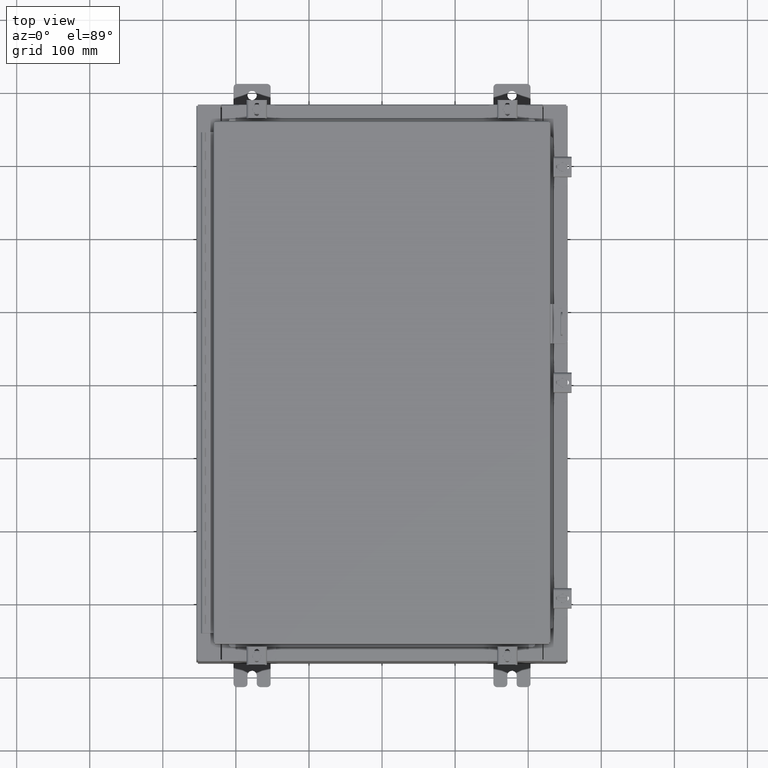
[diagram: clean part render]
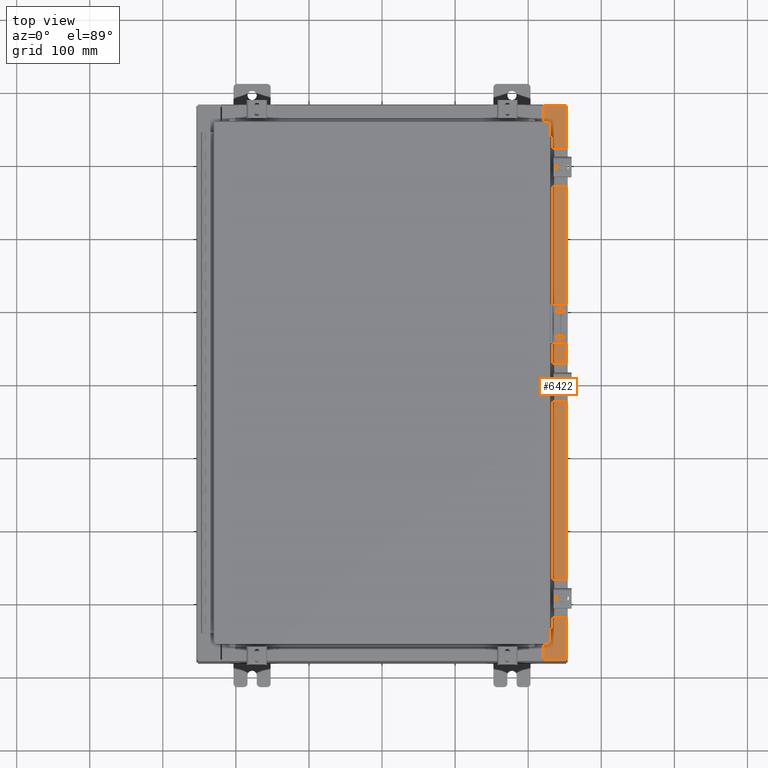
[diagram: same view with one face highlighted and labeled with its STEP entity id]
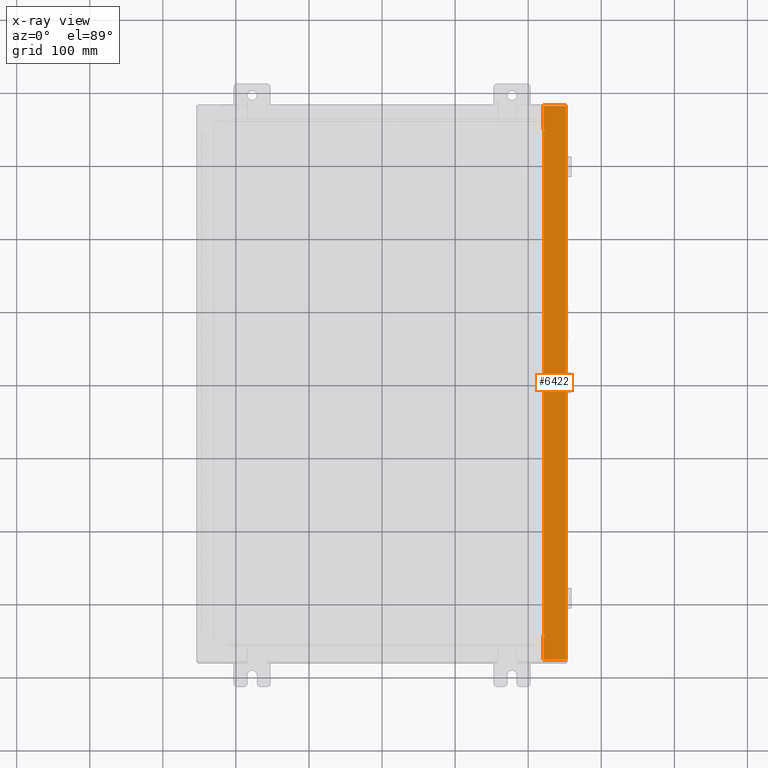
[diagram: x-ray of the same camera — body ghosted, the highlighted face saturated]
A machine part, top view. The second image highlights one B-rep face of the part: STEP entity #6422.
The next image is the same camera in x-ray: the body ghosted, the highlighted face saturated — about 0% of this face is hidden behind the body in this view.
In plain terms, the highlighted planar face has unit normal (-0, -0, -1).
Its self-contained STEP definition (entity closure, byte-faithful):
#106 = VERTEX_POINT ( 'NONE', #13331 ) ;
#571 = EDGE_CURVE ( 'NONE', #21090, #17673, #15659, .T. ) ;
#758 = ORIENTED_EDGE ( 'NONE', *, *, #33576, .T. ) ;
#1273 = VERTEX_POINT ( 'NONE', #2179 ) ;
#2179 = CARTESIAN_POINT ( 'NONE',  ( 8.699700000000028400, 13.63110000000000700, 7.925300000000008900 ) ) ;
#2803 = EDGE_CURVE ( 'NONE', #7888, #21090, #7504, .T. ) ;
#3028 = AXIS2_PLACEMENT_3D ( 'NONE', #13422, #13379, #13375 ) ;
#3109 = CARTESIAN_POINT ( 'NONE',  ( 9.912300000000028500, 14.92530000000000700, 7.925300000000000000 ) ) ;
#3203 = VERTEX_POINT ( 'NONE', #22450 ) ;
#3228 = CARTESIAN_POINT ( 'NONE',  ( 8.750050000000030100, 13.63110000000000700, 7.925300000000008900 ) ) ;
#3978 = VECTOR ( 'NONE', #17254, 39.37007874015748100 ) ;
#4178 = EDGE_CURVE ( 'NONE', #34223, #3203, #29104, .T. ) ;
#6068 = VECTOR ( 'NONE', #22429, 39.37007874015748100 ) ;
#6401 = ORIENTED_EDGE ( 'NONE', *, *, #4178, .F. ) ;
#6422 = ADVANCED_FACE ( 'NONE', ( #28535 ), #35598, .F. ) ;
#6718 = EDGE_CURVE ( 'NONE', #9891, #106, #11703, .T. ) ;
#6786 = ORIENTED_EDGE ( 'NONE', *, *, #16238, .T. ) ;
#6936 = DIRECTION ( 'NONE',  ( -1.000000000000000000, 4.379057701015054300E-047, 7.132762385546378400E-015 ) ) ;
#7319 = CARTESIAN_POINT ( 'NONE',  ( 5.679009539018278900E-014, 14.92530000000000500, 7.925300000000069300 ) ) ;
#7504 = CIRCLE ( 'NONE', #13923, 0.01867499999999949400 ) ;
#7888 = VERTEX_POINT ( 'NONE', #17109 ) ;
#7948 = DIRECTION ( 'NONE',  ( -1.000000000000000000, 0.0000000000000000000, 7.132762385546378400E-015 ) ) ;
#8043 = DIRECTION ( 'NONE',  ( -1.000000000000000000, 0.0000000000000000000, 0.0000000000000000000 ) ) ;
#8542 = CARTESIAN_POINT ( 'NONE',  ( 8.699700000000028400, -13.63109999999999800, 7.925300000000008900 ) ) ;
#8832 = CARTESIAN_POINT ( 'NONE',  ( 8.750050000000030100, -13.59375000000000000, 7.925300000000008900 ) ) ;
#9026 = CARTESIAN_POINT ( 'NONE',  ( 8.699700000000028400, -13.63109999999999800, 7.925300000000008900 ) ) ;
#9079 = DIRECTION ( 'NONE',  ( 1.000000000000000000, 0.0000000000000000000, 0.0000000000000000000 ) ) ;
#9725 = DIRECTION ( 'NONE',  ( 1.000000000000000000, 0.0000000000000000000, 0.0000000000000000000 ) ) ;
#9891 = VERTEX_POINT ( 'NONE', #28573 ) ;
#10834 = CARTESIAN_POINT ( 'NONE',  ( 8.699700000000028400, 14.92530000000000700, 7.925300000000007100 ) ) ;
#11238 = CARTESIAN_POINT ( 'NONE',  ( 8.750050000000030100, -13.59375000000000000, 7.925300000000008900 ) ) ;
#11703 = LINE ( 'NONE', #16449, #18528 ) ;
#12250 = VECTOR ( 'NONE', #17214, 39.37007874015748100 ) ;
#12388 = AXIS2_PLACEMENT_3D ( 'NONE', #30857, #30012, #7948 ) ;
#12547 = CARTESIAN_POINT ( 'NONE',  ( 8.712700000000030100, -13.59375000000000000, 7.925300000000008900 ) ) ;
#12834 = DIRECTION ( 'NONE',  ( -0.0000000000000000000, 1.000000000000000000, -0.0000000000000000000 ) ) ;
#12887 = ORIENTED_EDGE ( 'NONE', *, *, #13429, .F. ) ;
#13331 = CARTESIAN_POINT ( 'NONE',  ( 8.750050000000030100, 13.59375000000000900, 7.925300000000007100 ) ) ;
#13375 = DIRECTION ( 'NONE',  ( 1.000000000000000000, 0.0000000000000000000, 0.0000000000000000000 ) ) ;
#13379 = DIRECTION ( 'NONE',  ( 7.132762385546378400E-015, 3.660694248911932200E-017, 1.000000000000000000 ) ) ;
#13420 = CARTESIAN_POINT ( 'NONE',  ( 8.750050000000030100, 13.63110000000000700, 7.925300000000008900 ) ) ;
#13422 = CARTESIAN_POINT ( 'NONE',  ( 8.750050000000030100, 13.61242500000000900, 7.925300000000008900 ) ) ;
#13429 = EDGE_CURVE ( 'NONE', #13461, #7888, #29241, .T. ) ;
#13461 = VERTEX_POINT ( 'NONE', #8542 ) ;
#13633 = DIRECTION ( 'NONE',  ( -1.000000000000000000, 0.0000000000000000000, 0.0000000000000000000 ) ) ;
#13680 = VECTOR ( 'NONE', #13633, 39.37007874015748100 ) ;
#13923 = AXIS2_PLACEMENT_3D ( 'NONE', #34784, #34739, #34732 ) ;
#13933 = CARTESIAN_POINT ( 'NONE',  ( 8.699700000000028400, 2.901210013090176800E-016, 7.925300000000008900 ) ) ;
#13981 = VECTOR ( 'NONE', #6936, 39.37007874015748100 ) ;
#14431 = ORIENTED_EDGE ( 'NONE', *, *, #571, .F. ) ;
#14590 = LINE ( 'NONE', #13420, #13680 ) ;
#15285 = CARTESIAN_POINT ( 'NONE',  ( 8.699700000000028400, 2.901210013090176800E-016, 7.925300000000008900 ) ) ;
#15659 = LINE ( 'NONE', #11238, #37079 ) ;
#15675 = DIRECTION ( 'NONE',  ( 0.0000000000000000000, -1.000000000000000000, 3.660694248911932200E-017 ) ) ;
#15936 = EDGE_LOOP ( 'NONE', ( #12887, #26108, #31949, #6401, #6786, #758, #22191, #34217, #16967, #32740, #14431, #34368 ) ) ;
#16238 = EDGE_CURVE ( 'NONE', #34223, #20321, #21718, .T. ) ;
#16449 = CARTESIAN_POINT ( 'NONE',  ( 8.712700000000030100, 13.59375000000000900, 7.925300000000008900 ) ) ;
#16837 = CARTESIAN_POINT ( 'NONE',  ( 8.340474999843167500E-014, -14.92530000000001400, 7.925300000000071100 ) ) ;
#16966 = LINE ( 'NONE', #12547, #31580 ) ;
#16967 = ORIENTED_EDGE ( 'NONE', *, *, #6718, .F. ) ;
#17109 = CARTESIAN_POINT ( 'NONE',  ( 8.750050000000030100, -13.63109999999999800, 7.925300000000008900 ) ) ;
#17214 = DIRECTION ( 'NONE',  ( 0.0000000000000000000, -1.000000000000000000, 3.660694248911932200E-017 ) ) ;
#17254 = DIRECTION ( 'NONE',  ( 1.000000000000000000, 1.783190596386594600E-015, -7.132762385546378400E-015 ) ) ;
#17673 = VERTEX_POINT ( 'NONE', #31233 ) ;
#18509 = EDGE_CURVE ( 'NONE', #25249, #3203, #25191, .T. ) ;
#18528 = VECTOR ( 'NONE', #9079, 39.37007874015748100 ) ;
#20151 = LINE ( 'NONE', #15285, #37500 ) ;
#20321 = VERTEX_POINT ( 'NONE', #10834 ) ;
#21090 = VERTEX_POINT ( 'NONE', #8832 ) ;
#21718 = LINE ( 'NONE', #7319, #13981 ) ;
#22191 = ORIENTED_EDGE ( 'NONE', *, *, #25618, .F. ) ;
#22429 = DIRECTION ( 'NONE',  ( -0.0000000000000000000, -1.000000000000000000, 3.660694248911932200E-017 ) ) ;
#22450 = CARTESIAN_POINT ( 'NONE',  ( 9.912300000000028500, -14.92529999999999800, 7.925300000000000900 ) ) ;
#22863 = CARTESIAN_POINT ( 'NONE',  ( 9.912300000000028500, -14.92529999999999800, 7.925300000000000900 ) ) ;
#23872 = EDGE_CURVE ( 'NONE', #17673, #9891, #16966, .T. ) ;
#24986 = CARTESIAN_POINT ( 'NONE',  ( 8.699700000000028400, -14.92529999999999800, 7.925300000000008900 ) ) ;
#25151 = CIRCLE ( 'NONE', #3028, 0.01867499999999949400 ) ;
#25191 = LINE ( 'NONE', #16837, #3978 ) ;
#25249 = VERTEX_POINT ( 'NONE', #24986 ) ;
#25618 = EDGE_CURVE ( 'NONE', #37107, #1273, #14590, .T. ) ;
#26108 = ORIENTED_EDGE ( 'NONE', *, *, #29962, .T. ) ;
#28347 = VECTOR ( 'NONE', #9725, 39.37007874015748100 ) ;
#28535 = FACE_OUTER_BOUND ( 'NONE', #15936, .T. ) ;
#28573 = CARTESIAN_POINT ( 'NONE',  ( 8.712700000000030100, 13.59375000000000900, 7.925300000000008900 ) ) ;
#28603 = LINE ( 'NONE', #13933, #12250 ) ;
#29104 = LINE ( 'NONE', #22863, #6068 ) ;
#29241 = LINE ( 'NONE', #9026, #28347 ) ;
#29962 = EDGE_CURVE ( 'NONE', #13461, #25249, #28603, .T. ) ;
#30012 = DIRECTION ( 'NONE',  ( -7.132762385546378400E-015, -3.660694248911932200E-017, -1.000000000000000000 ) ) ;
#30857 = CARTESIAN_POINT ( 'NONE',  ( 5.679009539018279500E-014, 2.901210013090199500E-016, 7.925300000000071100 ) ) ;
#31233 = CARTESIAN_POINT ( 'NONE',  ( 8.712700000000030100, -13.59375000000000000, 7.925300000000008900 ) ) ;
#31580 = VECTOR ( 'NONE', #12834, 39.37007874015748100 ) ;
#31949 = ORIENTED_EDGE ( 'NONE', *, *, #18509, .T. ) ;
#32740 = ORIENTED_EDGE ( 'NONE', *, *, #23872, .F. ) ;
#33576 = EDGE_CURVE ( 'NONE', #20321, #1273, #20151, .T. ) ;
#33682 = EDGE_CURVE ( 'NONE', #106, #37107, #25151, .T. ) ;
#34217 = ORIENTED_EDGE ( 'NONE', *, *, #33682, .F. ) ;
#34223 = VERTEX_POINT ( 'NONE', #3109 ) ;
#34368 = ORIENTED_EDGE ( 'NONE', *, *, #2803, .F. ) ;
#34732 = DIRECTION ( 'NONE',  ( 1.000000000000000000, 0.0000000000000000000, 0.0000000000000000000 ) ) ;
#34739 = DIRECTION ( 'NONE',  ( 7.132762385546378400E-015, 3.660694248911932200E-017, 1.000000000000000000 ) ) ;
#34784 = CARTESIAN_POINT ( 'NONE',  ( 8.750050000000030100, -13.61242500000000000, 7.925300000000008900 ) ) ;
#35598 = PLANE ( 'NONE',  #12388 ) ;
#37079 = VECTOR ( 'NONE', #8043, 39.37007874015748100 ) ;
#37107 = VERTEX_POINT ( 'NONE', #3228 ) ;
#37500 = VECTOR ( 'NONE', #15675, 39.37007874015748100 ) ;